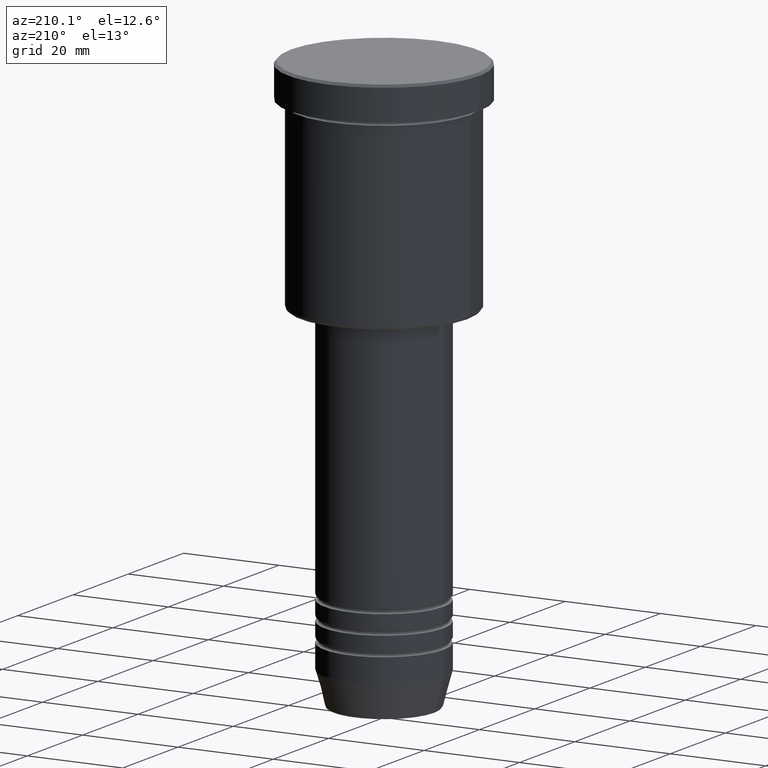
[diagram: clean part render]
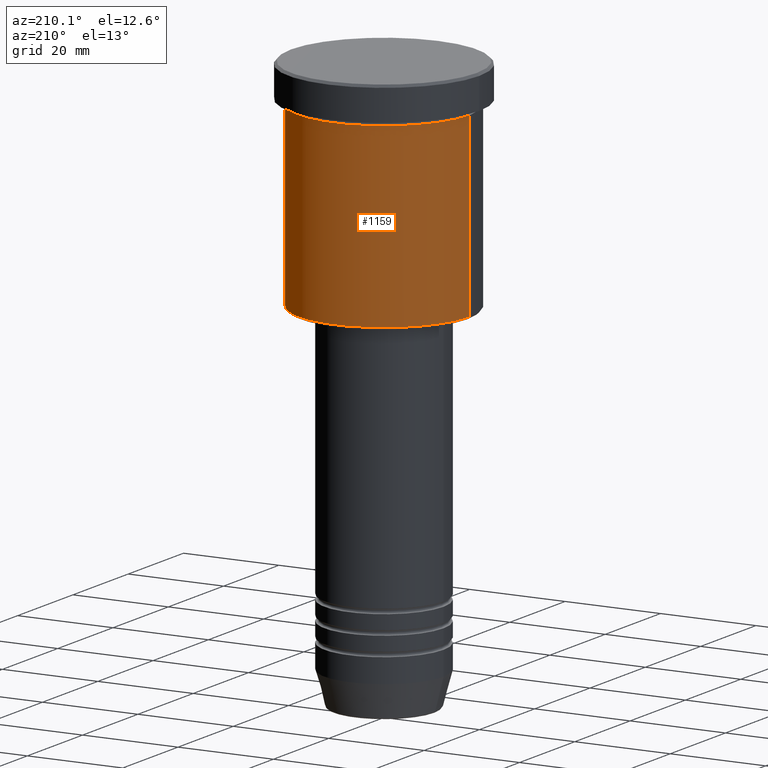
[diagram: same view with one face highlighted and labeled with its STEP entity id]
A machine part, auxiliary view. The second image highlights one B-rep face of the part: STEP entity #1159.
In plain terms, the highlighted cylindrical surface (partial cylindrical patch) has radius 18 mm, axis along (-0, -0, 1).
Its self-contained STEP definition (entity closure, byte-faithful):
#30 = CARTESIAN_POINT ( 'NONE',  ( -18.00000000000000000, 2.204364238465235428E-15, -45.49999999999998579 ) ) ;
#63 = VERTEX_POINT ( 'NONE', #665 ) ;
#100 = CIRCLE ( 'NONE', #704, 18.00000000000000000 ) ;
#129 = CYLINDRICAL_SURFACE ( 'NONE', #1113, 18.00000000000000000 ) ;
#139 = EDGE_CURVE ( 'NONE', #63, #1006, #315, .T. ) ;
#150 = VERTEX_POINT ( 'NONE', #592 ) ;
#197 = ORIENTED_EDGE ( 'NONE', *, *, #644, .T. ) ;
#282 = EDGE_CURVE ( 'NONE', #63, #799, #944, .T. ) ;
#292 = CARTESIAN_POINT ( 'NONE',  ( 0.000000000000000000, 0.000000000000000000, 0.000000000000000000 ) ) ;
#310 = VECTOR ( 'NONE', #684, 1000.000000000000000 ) ;
#315 = LINE ( 'NONE', #984, #310 ) ;
#514 = DIRECTION ( 'NONE',  ( -0.000000000000000000, -0.000000000000000000, 1.000000000000000000 ) ) ;
#562 = DIRECTION ( 'NONE',  ( -0.000000000000000000, -0.000000000000000000, 1.000000000000000000 ) ) ;
#592 = CARTESIAN_POINT ( 'NONE',  ( -18.00000000000000000, 2.204364238465235428E-15, -7.999999999999996447 ) ) ;
#602 = EDGE_LOOP ( 'NONE', ( #792, #197, #654, #655 ) ) ;
#637 = DIRECTION ( 'NONE',  ( -0.000000000000000000, -0.000000000000000000, 1.000000000000000000 ) ) ;
#644 = EDGE_CURVE ( 'NONE', #799, #150, #1152, .T. ) ;
#654 = ORIENTED_EDGE ( 'NONE', *, *, #1073, .F. ) ;
#655 = ORIENTED_EDGE ( 'NONE', *, *, #139, .F. ) ;
#665 = CARTESIAN_POINT ( 'NONE',  ( 18.00000000000000000, 0.000000000000000000, -45.49999999999998579 ) ) ;
#684 = DIRECTION ( 'NONE',  ( -0.000000000000000000, -0.000000000000000000, 1.000000000000000000 ) ) ;
#695 = CARTESIAN_POINT ( 'NONE',  ( -18.00000000000000000, 2.204364238465235428E-15, 0.000000000000000000 ) ) ;
#704 = AXIS2_PLACEMENT_3D ( 'NONE', #972, #637, #917 ) ;
#708 = DIRECTION ( 'NONE',  ( -1.000000000000000000, 0.000000000000000000, 0.000000000000000000 ) ) ;
#754 = DIRECTION ( 'NONE',  ( 1.000000000000000000, 0.000000000000000000, 0.000000000000000000 ) ) ;
#792 = ORIENTED_EDGE ( 'NONE', *, *, #282, .T. ) ;
#799 = VERTEX_POINT ( 'NONE', #30 ) ;
#820 = CARTESIAN_POINT ( 'NONE',  ( 0.000000000000000000, 0.000000000000000000, -45.49999999999998579 ) ) ;
#917 = DIRECTION ( 'NONE',  ( 1.000000000000000000, 0.000000000000000000, 0.000000000000000000 ) ) ;
#944 = CIRCLE ( 'NONE', #1004, 18.00000000000000000 ) ;
#945 = FACE_OUTER_BOUND ( 'NONE', #602, .T. ) ;
#972 = CARTESIAN_POINT ( 'NONE',  ( 0.000000000000000000, 0.000000000000000000, -7.999999999999996447 ) ) ;
#984 = CARTESIAN_POINT ( 'NONE',  ( 18.00000000000000000, 0.000000000000000000, 0.000000000000000000 ) ) ;
#997 = DIRECTION ( 'NONE',  ( -0.000000000000000000, -0.000000000000000000, 1.000000000000000000 ) ) ;
#1004 = AXIS2_PLACEMENT_3D ( 'NONE', #820, #997, #708 ) ;
#1006 = VERTEX_POINT ( 'NONE', #1137 ) ;
#1073 = EDGE_CURVE ( 'NONE', #1006, #150, #100, .T. ) ;
#1113 = AXIS2_PLACEMENT_3D ( 'NONE', #292, #562, #754 ) ;
#1129 = VECTOR ( 'NONE', #514, 1000.000000000000000 ) ;
#1137 = CARTESIAN_POINT ( 'NONE',  ( 18.00000000000000000, 0.000000000000000000, -7.999999999999996447 ) ) ;
#1152 = LINE ( 'NONE', #695, #1129 ) ;
#1159 = ADVANCED_FACE ( 'NONE', ( #945 ), #129, .T. ) ;